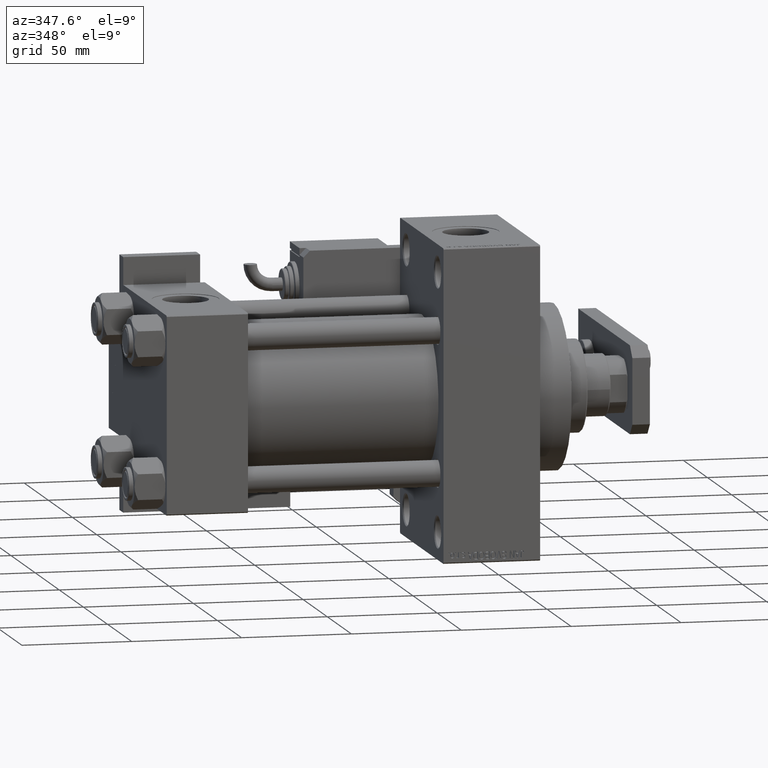
[diagram: clean part render]
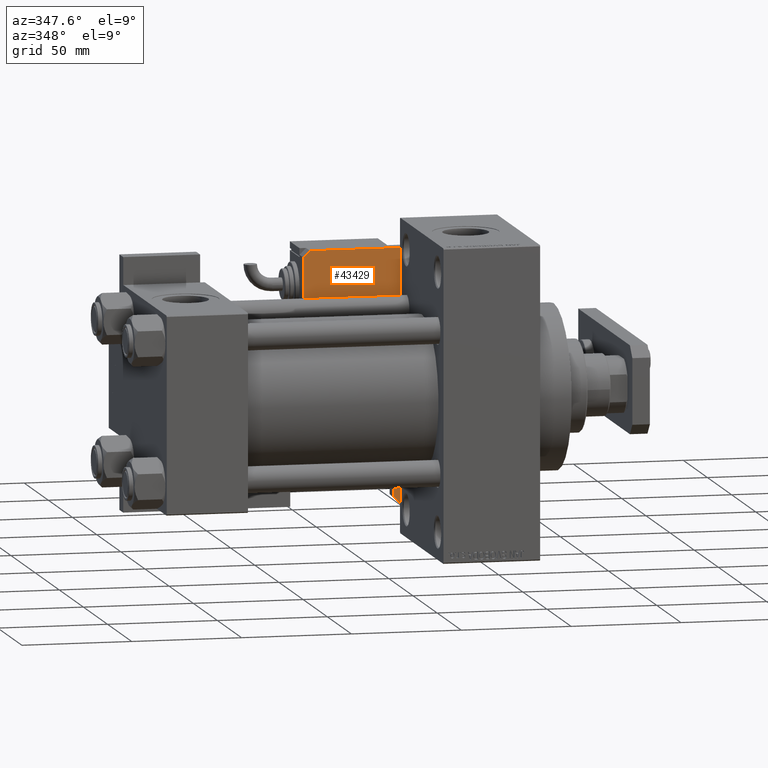
[diagram: same view with one face highlighted and labeled with its STEP entity id]
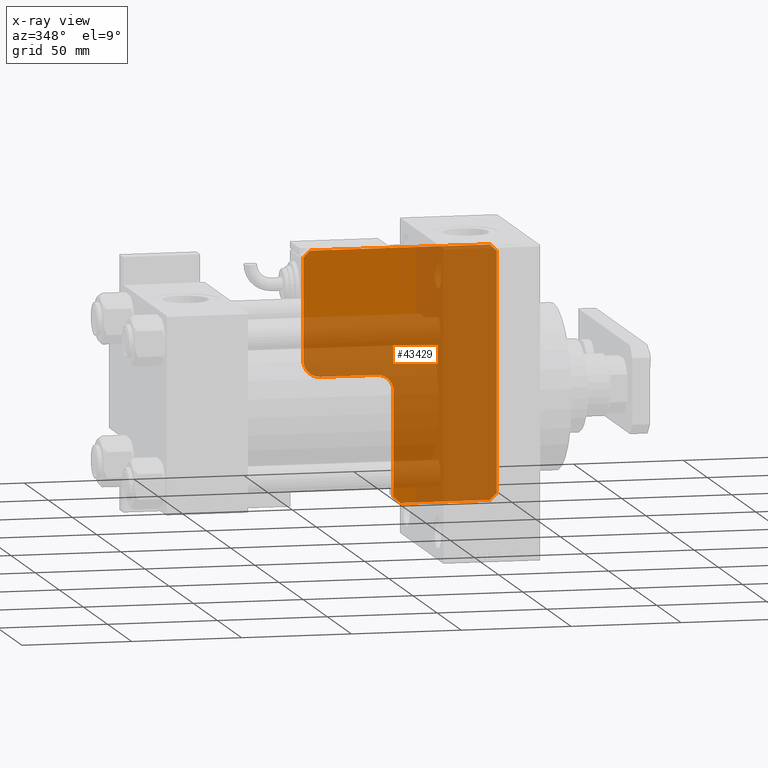
[diagram: x-ray of the same camera — body ghosted, the highlighted face saturated]
A machine part, auxiliary view. The second image highlights one B-rep face of the part: STEP entity #43429.
The next image is the same camera in x-ray: the body ghosted, the highlighted face saturated — about 79% of this face is hidden behind the body in this view.
In plain terms, the highlighted planar face has unit normal (-0, 1, -0).
Its self-contained STEP definition (entity closure, byte-faithful):
#645 = VERTEX_POINT ( 'NONE', #22779 ) ;
#887 = CARTESIAN_POINT ( 'NONE',  ( 0.000000000000000000, 3.000000000000002665, 0.000000000000000000 ) ) ;
#1194 = ORIENTED_EDGE ( 'NONE', *, *, #54516, .T. ) ;
#1340 = EDGE_LOOP ( 'NONE', ( #52807, #15645, #31148, #1194, #9700, #31436, #14696, #37107, #5723, #45739, #46595, #21847 ) ) ;
#1447 = EDGE_CURVE ( 'NONE', #18654, #32451, #3564, .T. ) ;
#1527 = FACE_OUTER_BOUND ( 'NONE', #1340, .T. ) ;
#1832 = DIRECTION ( 'NONE',  ( 0.7071067811865441310, -0.7071067811865507924, -0.000000000000000000 ) ) ;
#2298 = VECTOR ( 'NONE', #13714, 1000.000000000000000 ) ;
#2453 = LINE ( 'NONE', #49455, #15971 ) ;
#3299 = DIRECTION ( 'NONE',  ( 0.7071067811865507924, 0.7071067811865441310, -0.000000000000000000 ) ) ;
#3564 = LINE ( 'NONE', #15819, #35471 ) ;
#4950 = CARTESIAN_POINT ( 'NONE',  ( 0.000000000000000000, 85.00000000000001421, 0.000000000000000000 ) ) ;
#5606 = CARTESIAN_POINT ( 'NONE',  ( 64.50000000000000000, 54.49999999999998579, 0.000000000000000000 ) ) ;
#5675 = VERTEX_POINT ( 'NONE', #22096 ) ;
#5723 = ORIENTED_EDGE ( 'NONE', *, *, #1447, .F. ) ;
#5809 = AXIS2_PLACEMENT_3D ( 'NONE', #22394, #18487, #17667 ) ;
#6020 = VERTEX_POINT ( 'NONE', #887 ) ;
#6412 = AXIS2_PLACEMENT_3D ( 'NONE', #5606, #9233, #25900 ) ;
#8036 = VERTEX_POINT ( 'NONE', #12832 ) ;
#9233 = DIRECTION ( 'NONE',  ( 0.000000000000000000, -0.000000000000000000, 1.000000000000000000 ) ) ;
#9286 = DIRECTION ( 'NONE',  ( -1.000000000000000000, 0.000000000000000000, 0.000000000000000000 ) ) ;
#9678 = VERTEX_POINT ( 'NONE', #16283 ) ;
#9700 = ORIENTED_EDGE ( 'NONE', *, *, #24715, .F. ) ;
#10502 = EDGE_CURVE ( 'NONE', #18654, #21369, #24349, .T. ) ;
#11271 = DIRECTION ( 'NONE',  ( 0.000000000000000000, -1.000000000000000000, 0.000000000000000000 ) ) ;
#12832 = CARTESIAN_POINT ( 'NONE',  ( 2.999999999999975131, 0.000000000000000000, 0.000000000000000000 ) ) ;
#12904 = CARTESIAN_POINT ( 'NONE',  ( 56.99999999999999289, 80.49999999999997158, 0.000000000000000000 ) ) ;
#12948 = EDGE_CURVE ( 'NONE', #9678, #32451, #35757, .T. ) ;
#13670 = DIRECTION ( 'NONE',  ( 1.000000000000000000, 5.551115123125782702E-15, 0.000000000000000000 ) ) ;
#13714 = DIRECTION ( 'NONE',  ( -1.000000000000000000, 0.000000000000000000, 0.000000000000000000 ) ) ;
#13914 = CARTESIAN_POINT ( 'NONE',  ( 114.9999999999999858, 43.99999999999998579, 0.000000000000000000 ) ) ;
#14696 = ORIENTED_EDGE ( 'NONE', *, *, #43683, .F. ) ;
#14932 = VECTOR ( 'NONE', #9286, 1000.000000000000000 ) ;
#15645 = ORIENTED_EDGE ( 'NONE', *, *, #37713, .T. ) ;
#15819 = CARTESIAN_POINT ( 'NONE',  ( 114.9999999999999858, 0.000000000000000000, 0.000000000000000000 ) ) ;
#15912 = CIRCLE ( 'NONE', #35428, 7.500000000000000000 ) ;
#15971 = VECTOR ( 'NONE', #36374, 1000.000000000000114 ) ;
#15976 = VERTEX_POINT ( 'NONE', #18164 ) ;
#16103 = LINE ( 'NONE', #45566, #52994 ) ;
#16131 = CARTESIAN_POINT ( 'NONE',  ( 111.9999999999999858, 0.000000000000000000, 0.000000000000000000 ) ) ;
#16283 = CARTESIAN_POINT ( 'NONE',  ( 112.0000000000000142, 46.99999999999998579, 0.000000000000000000 ) ) ;
#17357 = EDGE_CURVE ( 'NONE', #8036, #6020, #2453, .T. ) ;
#17490 = VECTOR ( 'NONE', #33243, 1000.000000000000000 ) ;
#17667 = DIRECTION ( 'NONE',  ( 1.000000000000000000, 0.000000000000000000, -0.000000000000000000 ) ) ;
#18164 = CARTESIAN_POINT ( 'NONE',  ( 3.000000000000002665, 88.00000000000000000, 0.000000000000000000 ) ) ;
#18487 = DIRECTION ( 'NONE',  ( 0.000000000000000000, -0.000000000000000000, 1.000000000000000000 ) ) ;
#18654 = VERTEX_POINT ( 'NONE', #43831 ) ;
#19867 = VECTOR ( 'NONE', #1832, 1000.000000000000114 ) ;
#19878 = CARTESIAN_POINT ( 'NONE',  ( 0.000000000000000000, 88.00000000000000000, 0.000000000000000000 ) ) ;
#20754 = EDGE_CURVE ( 'NONE', #37773, #6020, #39906, .T. ) ;
#21369 = VERTEX_POINT ( 'NONE', #16131 ) ;
#21847 = ORIENTED_EDGE ( 'NONE', *, *, #17357, .T. ) ;
#22017 = EDGE_CURVE ( 'NONE', #645, #5675, #22351, .T. ) ;
#22096 = CARTESIAN_POINT ( 'NONE',  ( 64.50000000000000000, 46.99999999999998579, 0.000000000000000000 ) ) ;
#22351 = CIRCLE ( 'NONE', #6412, 7.500000000000007105 ) ;
#22394 = CARTESIAN_POINT ( 'NONE',  ( 0.000000000000000000, 0.000000000000000000, 0.000000000000000000 ) ) ;
#22779 = CARTESIAN_POINT ( 'NONE',  ( 56.99999999999999289, 54.49999999999998579, 0.000000000000000000 ) ) ;
#24349 = LINE ( 'NONE', #45472, #25067 ) ;
#24367 = LINE ( 'NONE', #41323, #17490 ) ;
#24715 = EDGE_CURVE ( 'NONE', #645, #53139, #41673, .T. ) ;
#25067 = VECTOR ( 'NONE', #53840, 1000.000000000000114 ) ;
#25900 = DIRECTION ( 'NONE',  ( 1.000000000000000000, 0.000000000000000000, 0.000000000000000000 ) ) ;
#26213 = CARTESIAN_POINT ( 'NONE',  ( 114.9999999999999858, 46.99999999999998579, 0.000000000000000000 ) ) ;
#29695 = DIRECTION ( 'NONE',  ( 0.000000000000000000, 1.000000000000000000, 0.000000000000000000 ) ) ;
#29843 = CARTESIAN_POINT ( 'NONE',  ( 56.99999999999999289, 88.00000000000000000, 0.000000000000000000 ) ) ;
#31148 = ORIENTED_EDGE ( 'NONE', *, *, #51708, .F. ) ;
#31436 = ORIENTED_EDGE ( 'NONE', *, *, #22017, .T. ) ;
#32099 = VECTOR ( 'NONE', #11271, 1000.000000000000000 ) ;
#32451 = VERTEX_POINT ( 'NONE', #13914 ) ;
#33243 = DIRECTION ( 'NONE',  ( 1.000000000000000000, 0.000000000000000000, 0.000000000000000000 ) ) ;
#34554 = LINE ( 'NONE', #26213, #2298 ) ;
#35428 = AXIS2_PLACEMENT_3D ( 'NONE', #52312, #52859, #13670 ) ;
#35471 = VECTOR ( 'NONE', #45824, 1000.000000000000000 ) ;
#35757 = LINE ( 'NONE', #36844, #19867 ) ;
#36374 = DIRECTION ( 'NONE',  ( -0.7071067811865441310, 0.7071067811865507924, 0.000000000000000000 ) ) ;
#36844 = CARTESIAN_POINT ( 'NONE',  ( 112.0000000000000142, 46.99999999999998579, 0.000000000000000000 ) ) ;
#37107 = ORIENTED_EDGE ( 'NONE', *, *, #12948, .T. ) ;
#37713 = EDGE_CURVE ( 'NONE', #37773, #15976, #16103, .T. ) ;
#37773 = VERTEX_POINT ( 'NONE', #4950 ) ;
#39652 = EDGE_CURVE ( 'NONE', #8036, #21369, #24367, .T. ) ;
#39906 = LINE ( 'NONE', #19878, #32099 ) ;
#41323 = CARTESIAN_POINT ( 'NONE',  ( 0.000000000000000000, 0.000000000000000000, 0.000000000000000000 ) ) ;
#41673 = LINE ( 'NONE', #54759, #42788 ) ;
#42788 = VECTOR ( 'NONE', #29695, 1000.000000000000000 ) ;
#43429 = ADVANCED_FACE ( 'NONE', ( #1527 ), #51336, .F. ) ;
#43683 = EDGE_CURVE ( 'NONE', #9678, #5675, #34554, .T. ) ;
#43831 = CARTESIAN_POINT ( 'NONE',  ( 114.9999999999999858, 2.999999999999975131, 0.000000000000000000 ) ) ;
#45472 = CARTESIAN_POINT ( 'NONE',  ( 114.9999999999999858, 2.999999999999975131, 0.000000000000000000 ) ) ;
#45566 = CARTESIAN_POINT ( 'NONE',  ( 0.000000000000000000, 85.00000000000001421, 0.000000000000000000 ) ) ;
#45739 = ORIENTED_EDGE ( 'NONE', *, *, #10502, .T. ) ;
#45824 = DIRECTION ( 'NONE',  ( 0.000000000000000000, 1.000000000000000000, 0.000000000000000000 ) ) ;
#46595 = ORIENTED_EDGE ( 'NONE', *, *, #39652, .F. ) ;
#47281 = VERTEX_POINT ( 'NONE', #49741 ) ;
#49455 = CARTESIAN_POINT ( 'NONE',  ( 2.999999999999975131, 0.000000000000000000, 0.000000000000000000 ) ) ;
#49741 = CARTESIAN_POINT ( 'NONE',  ( 49.49999999999999289, 88.00000000000000000, 0.000000000000000000 ) ) ;
#51015 = LINE ( 'NONE', #29843, #14932 ) ;
#51336 = PLANE ( 'NONE',  #5809 ) ;
#51708 = EDGE_CURVE ( 'NONE', #47281, #15976, #51015, .T. ) ;
#52312 = CARTESIAN_POINT ( 'NONE',  ( 49.49999999999999289, 80.49999999999998579, 0.000000000000000000 ) ) ;
#52807 = ORIENTED_EDGE ( 'NONE', *, *, #20754, .F. ) ;
#52859 = DIRECTION ( 'NONE',  ( -0.000000000000000000, 0.000000000000000000, -1.000000000000000000 ) ) ;
#52994 = VECTOR ( 'NONE', #3299, 1000.000000000000114 ) ;
#53139 = VERTEX_POINT ( 'NONE', #12904 ) ;
#53840 = DIRECTION ( 'NONE',  ( -0.7071067811865507924, -0.7071067811865441310, -0.000000000000000000 ) ) ;
#54516 = EDGE_CURVE ( 'NONE', #47281, #53139, #15912, .T. ) ;
#54759 = CARTESIAN_POINT ( 'NONE',  ( 56.99999999999999289, 46.99999999999998579, 0.000000000000000000 ) ) ;